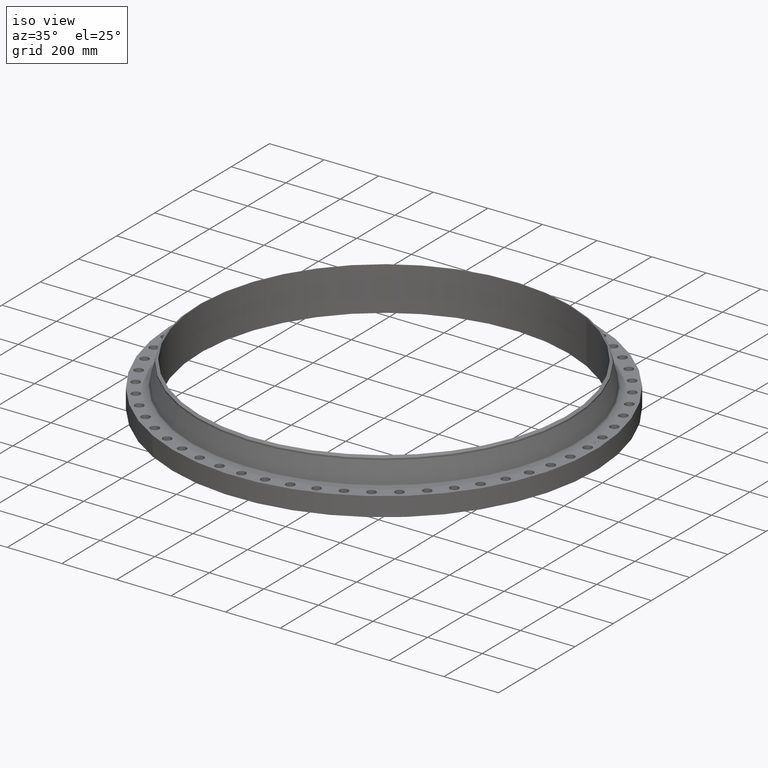
[diagram: clean part render]
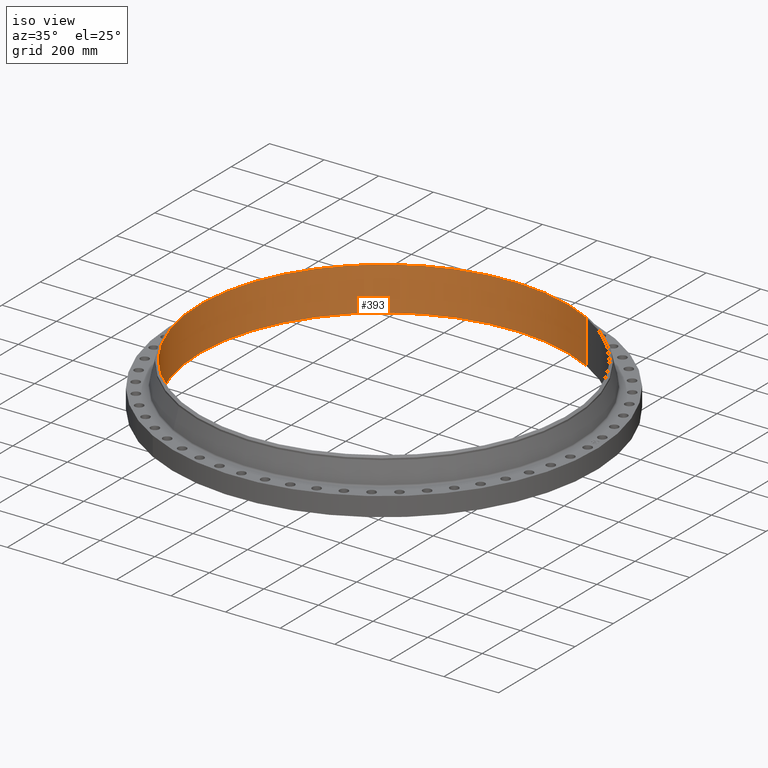
[diagram: same view with one face highlighted and labeled with its STEP entity id]
A machine part, iso view. The second image highlights one B-rep face of the part: STEP entity #393.
In plain terms, the highlighted cylindrical surface (partial cylindrical patch) has radius 677.799 mm, axis along (0, 0, -1).
Its self-contained STEP definition (entity closure, byte-faithful):
#346=AXIS2_PLACEMENT_3D('Circle Axis2P3D',#344,#345,$) ;
#366=AXIS2_PLACEMENT_3D('Cylinder Axis2P3D',#363,#364,#365) ;
#377=AXIS2_PLACEMENT_3D('Circle Axis2P3D',#375,#376,$) ;
#344=CARTESIAN_POINT('Axis2P3D Location',(-4.47585975282E-015,-1.1189649382E-015,6.32000000003)) ;
#348=CARTESIAN_POINT('Vertex',(-12.7934704977,-23.4182906641,6.32000000003)) ;
#350=CARTESIAN_POINT('Vertex',(12.7934704977,23.4182906641,6.32000000003)) ;
#363=CARTESIAN_POINT('Axis2P3D Location',(0.,0.,3.21000000001)) ;
#368=CARTESIAN_POINT('Line Origine',(-12.7934704977,-23.4182906641,3.16000000001)) ;
#372=CARTESIAN_POINT('Vertex',(-12.7934704977,-23.4182906641,-9.2874089871E-014)) ;
#375=CARTESIAN_POINT('Axis2P3D Location',(0.,0.,-9.2874089871E-014)) ;
#379=CARTESIAN_POINT('Vertex',(12.7934704977,23.4182906641,-9.2874089871E-014)) ;
#382=CARTESIAN_POINT('Line Origine',(12.7934704977,23.4182906641,3.16000000001)) ;
#345=DIRECTION('Axis2P3D Direction',(0.,-0.,-0.0393700787402)) ;
#364=DIRECTION('Axis2P3D Direction',(0.,0.,-0.0393700787402)) ;
#365=DIRECTION('Axis2P3D XDirection',(0.0188750212049,0.0345504945626,0.)) ;
#369=DIRECTION('Vector Direction',(0.,0.,-0.0393700787402)) ;
#376=DIRECTION('Axis2P3D Direction',(0.,0.,-0.0393700787402)) ;
#383=DIRECTION('Vector Direction',(0.,0.,-0.0393700787402)) ;
#370=VECTOR('Line Direction',#369,0.0393700787402) ;
#384=VECTOR('Line Direction',#383,0.0393700787402) ;
#388=ORIENTED_EDGE('',*,*,#374,.T.) ;
#389=ORIENTED_EDGE('',*,*,#381,.T.) ;
#390=ORIENTED_EDGE('',*,*,#386,.F.) ;
#391=ORIENTED_EDGE('',*,*,#352,.F.) ;
#393=ADVANCED_FACE('PartBody',(#392),#367,.F.) ;
#347=CIRCLE('generated circle',#346,26.6850000001) ;
#378=CIRCLE('generated circle',#377,26.6850000001) ;
#367=CYLINDRICAL_SURFACE('generated cylinder',#366,26.6850000001) ;
#352=EDGE_CURVE('',#349,#351,#347,.T.) ;
#374=EDGE_CURVE('',#349,#373,#371,.T.) ;
#381=EDGE_CURVE('',#373,#380,#378,.T.) ;
#386=EDGE_CURVE('',#351,#380,#385,.T.) ;
#387=EDGE_LOOP('',(#388,#389,#390,#391)) ;
#392=FACE_OUTER_BOUND('',#387,.T.) ;
#371=LINE('Line',#368,#370) ;
#385=LINE('Line',#382,#384) ;
#349=VERTEX_POINT('',#348) ;
#351=VERTEX_POINT('',#350) ;
#373=VERTEX_POINT('',#372) ;
#380=VERTEX_POINT('',#379) ;